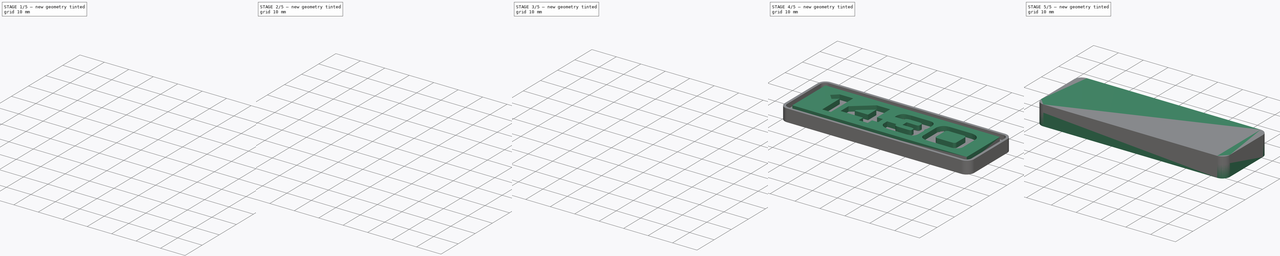
[diagram: build sequence overview — one tinted view per stage of 5, left to right]
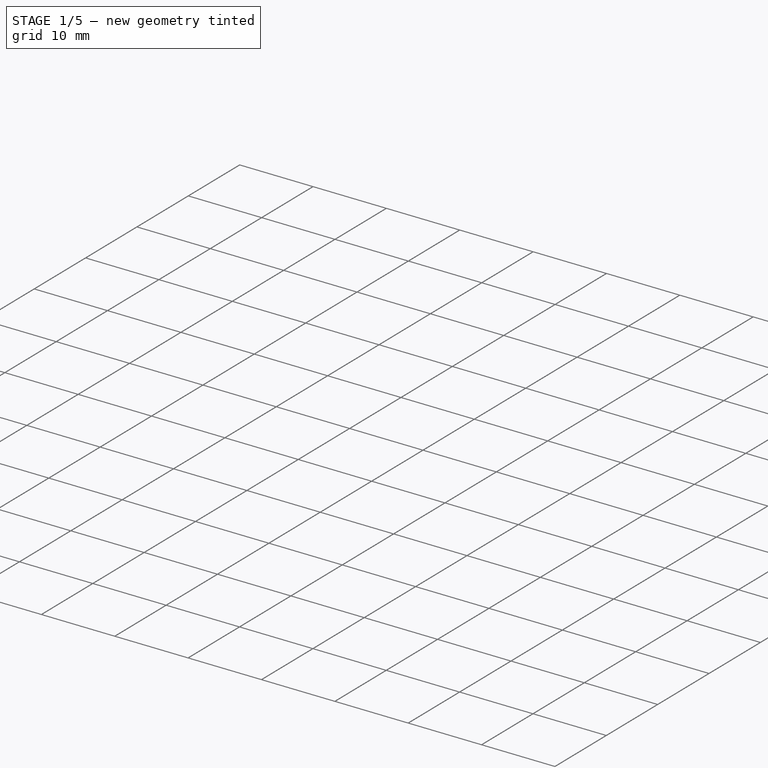
[diagram: stage 1 of 5 — iso view after this stage's code; geometry added in this stage tinted green]
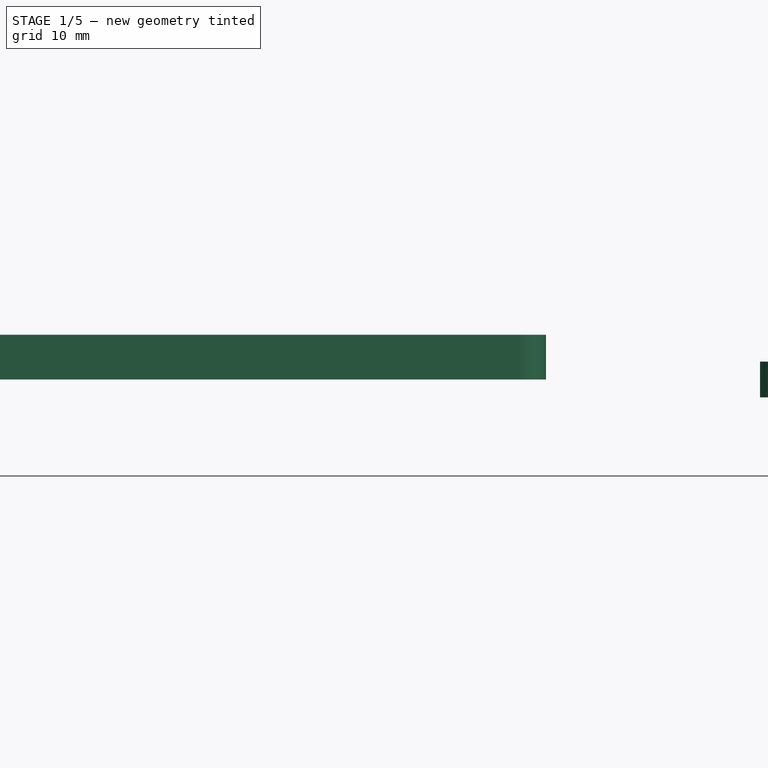
[diagram: stage 1 of 5 — front view after this stage's code; geometry added in this stage tinted green]
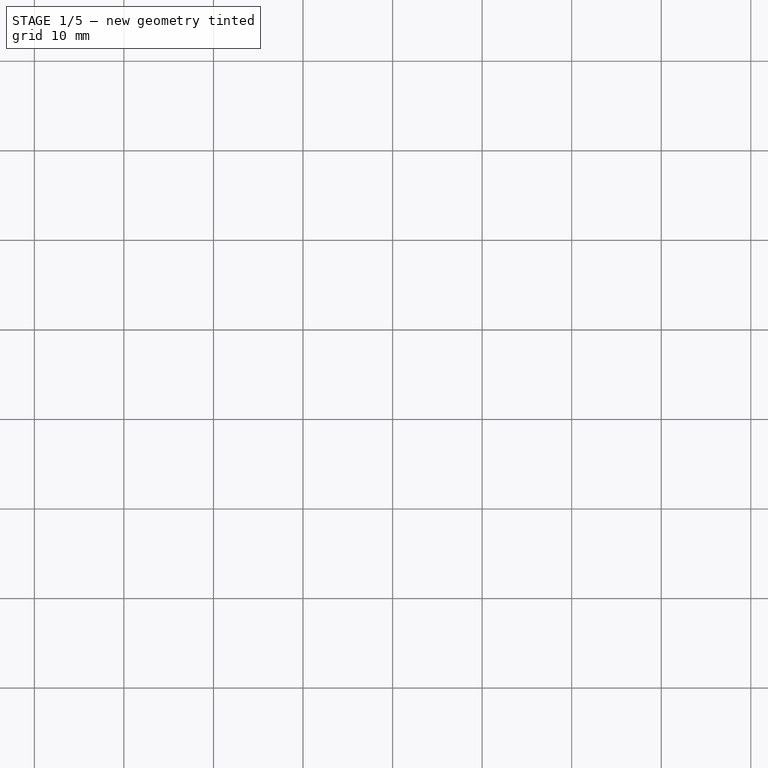
[diagram: stage 1 of 5 — top view after this stage's code; geometry added in this stage tinted green]
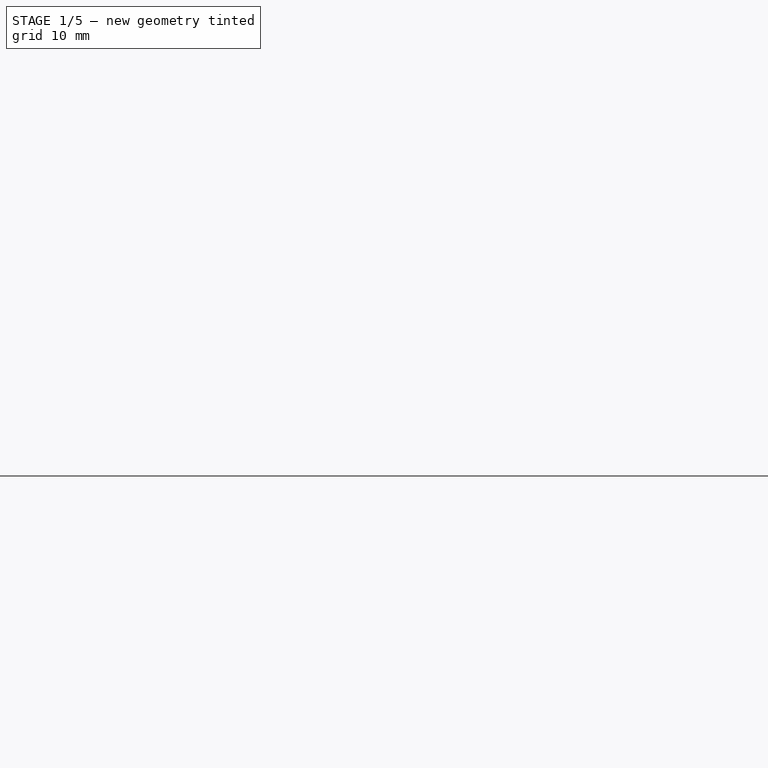
[diagram: stage 1 of 5 — right view after this stage's code; geometry added in this stage tinted green]
FCSTD DOCUMENT  (FreeCAD 0.17R10893 (Git))
Label: freecad-1430.2
License: CreativeCommons Attribution-ShareAlike
LicenseURL: http://creativecommons.org/licenses/by-sa/4.0/
objects: Part::Feature×6, Part::Extrusion×6, Part::Cut×3, Part::MultiFuse×3, Sketcher::SketchObject×3, Path::FeaturePython×3, PartDesign::Pad×2, PartDesign::Body×1, PartDesign::Pocket×1, Path::FeatureCompoundPython×1
note: 28 computed .brp shape members not serialized (recipe doc carries the construction recipe); baked Part::Feature solids carry a one-line shape summary decoded from their .brp

FEATURE [Part::Extrusion] Extrude004
  Base = -> path3458007
  Dir = (0,0,-1)
  DirMode = 0
  FaceMakerClass = Part::FaceMakerExtrusion
  LengthFwd = 0
  LengthRev = 0
  Solid = true
  Symmetric = false
FEATURE [Part::Extrusion] Extrude005
  Base = -> path3458008
  Dir = (0,0,-1)
  DirMode = 0
  FaceMakerClass = Part::FaceMakerExtrusion
  LengthFwd = 0
  LengthRev = 0
  Placement = pos=(0,0,2) rot=(0,0,1;0rad)
  Solid = true
  Symmetric = false
FEATURE [Sketcher::SketchObject] Sketch002
  ExternalGeometry = -> [Pad001]
  MapMode = 5
  Placement = pos=(0,0,3) rot=(0,0,1;0rad)
  sketch-geometry (8):
    g0: LineSegment StartX=-45.8645 StartY=10.6368 StartZ=0 EndX=24.1355 EndY=10.6368 EndZ=0
    g1: LineSegment StartX=26.1355 StartY=8.6368 StartZ=0 EndX=26.1355 EndY=-10.3632 EndZ=0
    g2: LineSegment StartX=24.1355 StartY=-12.3632 StartZ=0 EndX=-45.8645 EndY=-12.3632 EndZ=0
    g3: LineSegment StartX=-47.8645 StartY=-10.3632 StartZ=0 EndX=-47.8645 EndY=8.6368 EndZ=0
    g4: ArcOfCircle CenterX=-45.8645 CenterY=8.6368 CenterZ=0 NormalX=0 NormalY=0 NormalZ=1 Radius=2 StartAngle=1.5708 EndAngle=3.14159
    g5: ArcOfCircle CenterX=-45.8645 CenterY=-10.3632 CenterZ=0 NormalX=0 NormalY=0 NormalZ=1 Radius=2 StartAngle=3.14159 EndAngle=4.71239
    g6: ArcOfCircle CenterX=24.1355 CenterY=-10.3632 CenterZ=0 NormalX=0 NormalY=0 NormalZ=1 Radius=2 StartAngle=4.71239 EndAngle=6.28319
    g7: ArcOfCircle CenterX=24.1355 CenterY=8.6368 CenterZ=0 NormalX=0 NormalY=0 NormalZ=1 Radius=2 StartAngle=0 EndAngle=1.5708
  constraints (20):
    c: Horizontal(g0)
    c: Horizontal(g2)
    c: Vertical(g1)
    c: Vertical(g3)
    c: Tangent(g0,g4) = 1.5708
    c: Tangent(g3,g4) = 1.5708
    c: Tangent(g3,g5) = 1.5708
    c: Tangent(g2,g5) = 1.5708
    c: Tangent(g2,g6) = 1.5708
    c: Tangent(g1,g6) = 1.5708
    c: Tangent(g1,g7) = 1.5708
    c: Tangent(g0,g7) = 1.5708
    c: Radius(g4) = 2
    c: Equal(g4,g5)
    c: Equal(g5,g6)
    c: Equal(g6,g7)
    c: DistanceX(g3,g1) = 74
    c: DistanceY(g2,g0) = 23
    c: DistanceX(g1,g-3) = 1
    c: DistanceY(g0,g-4) = 1
FEATURE [Sketcher::SketchObject] Sketch
  ExternalGeometry = -> [Sketch002]
  MapMode = 5
  sketch-geometry (4):
    g0: LineSegment StartX=-45.8645 StartY=8.6368 StartZ=0 EndX=24.1355 EndY=8.6368 EndZ=0
    g1: LineSegment StartX=24.1355 StartY=8.6368 StartZ=0 EndX=24.1355 EndY=-10.3632 EndZ=0
    g2: LineSegment StartX=24.1355 StartY=-10.3632 StartZ=0 EndX=-45.8645 EndY=-10.3632 EndZ=0
    g3: LineSegment StartX=-45.8645 StartY=-10.3632 StartZ=0 EndX=-45.8645 EndY=8.6368 EndZ=0
  constraints (12):
    c: Coincident(g0,g1)
    c: Coincident(g1,g2)
    c: Coincident(g2,g3)
    c: Coincident(g3,g0)
    c: Horizontal(g0)
    c: Horizontal(g2)
    c: Vertical(g1)
    c: Vertical(g3)
    c: DistanceY(g1,g0) = 19
    c: DistanceX(g2,g1) = 70
    c: DistanceX(g-3,g0) = 2
    c: DistanceY(g0,g-4) = 2
FEATURE [PartDesign::Pocket] Pocket
  Length = 2
  Type = 0
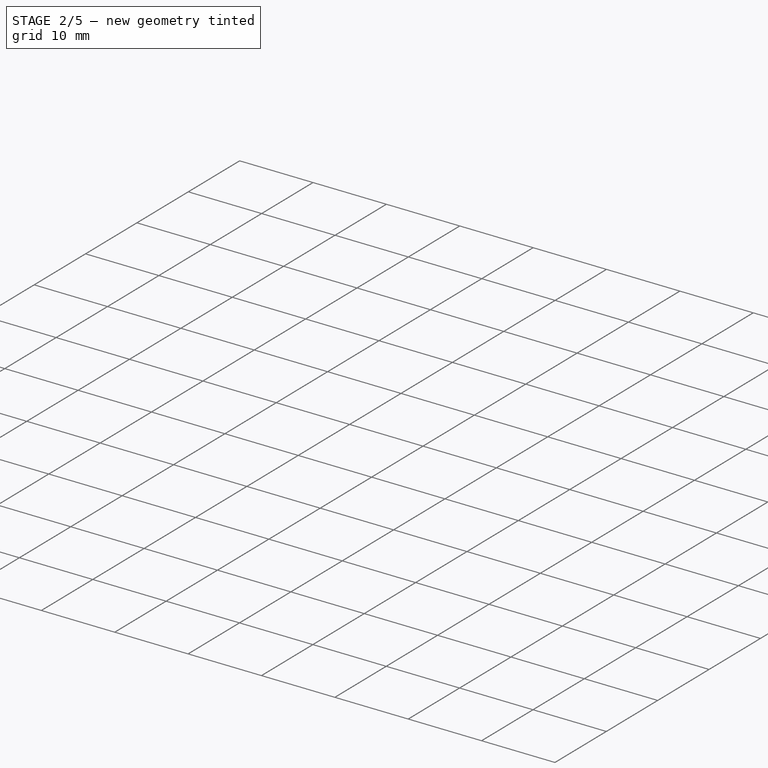
[diagram: stage 2 of 5 — iso view after this stage's code; geometry added in this stage tinted green]
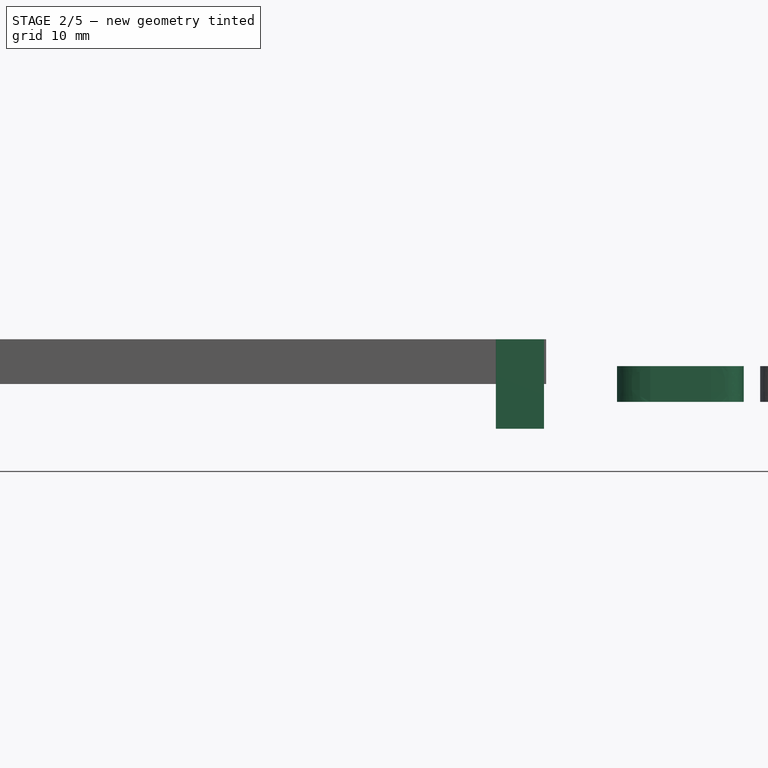
[diagram: stage 2 of 5 — front view after this stage's code; geometry added in this stage tinted green]
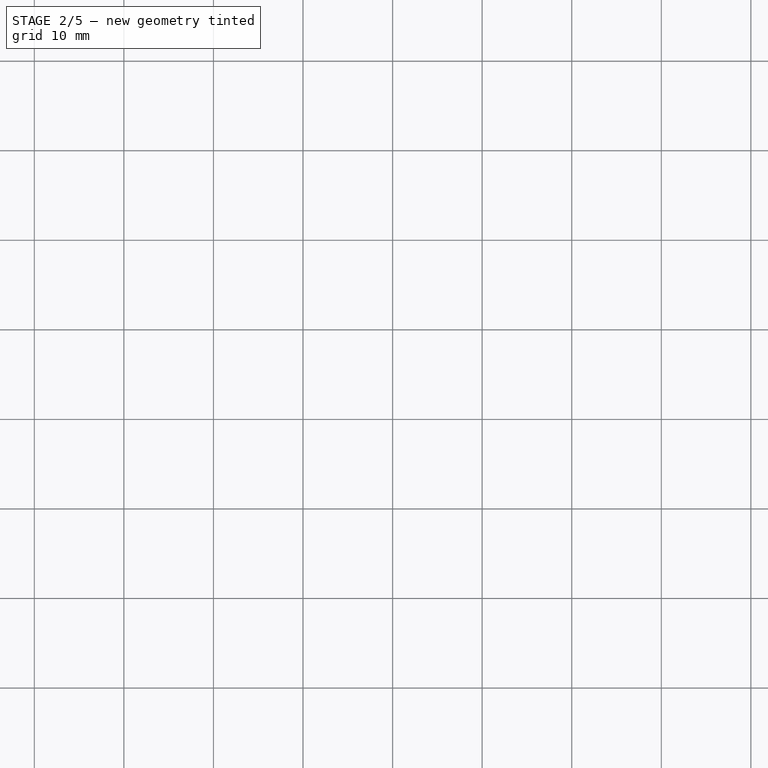
[diagram: stage 2 of 5 — top view after this stage's code; geometry added in this stage tinted green]
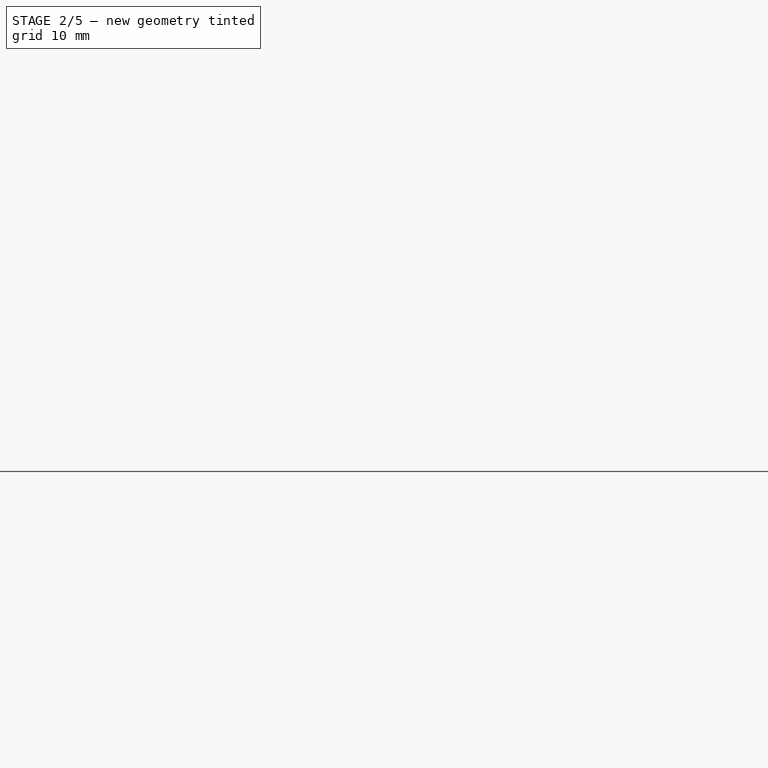
[diagram: stage 2 of 5 — right view after this stage's code; geometry added in this stage tinted green]
FEATURE [Part::Extrusion] Extrude002
  Base = -> path3458005
  Dir = (0,0,1)
  DirMode = 0
  FaceMakerClass = Part::FaceMakerExtrusion
  LengthFwd = 0
  LengthRev = 0
  Placement = pos=(0,0,-4) rot=(0,0,1;0rad)
  Solid = true
  Symmetric = false
FEATURE [Part::Extrusion] Extrude003  label="tres"
  Base = -> path3458006
  Dir = (0,0,-1)
  DirMode = 0
  FaceMakerClass = Part::FaceMakerExtrusion
  LengthFwd = 0
  LengthRev = 0
  Solid = true
  Symmetric = false
FEATURE [Part::Cut] Cut001  label="cero"
  Base = -> Extrude004
  Tool = -> Extrude005
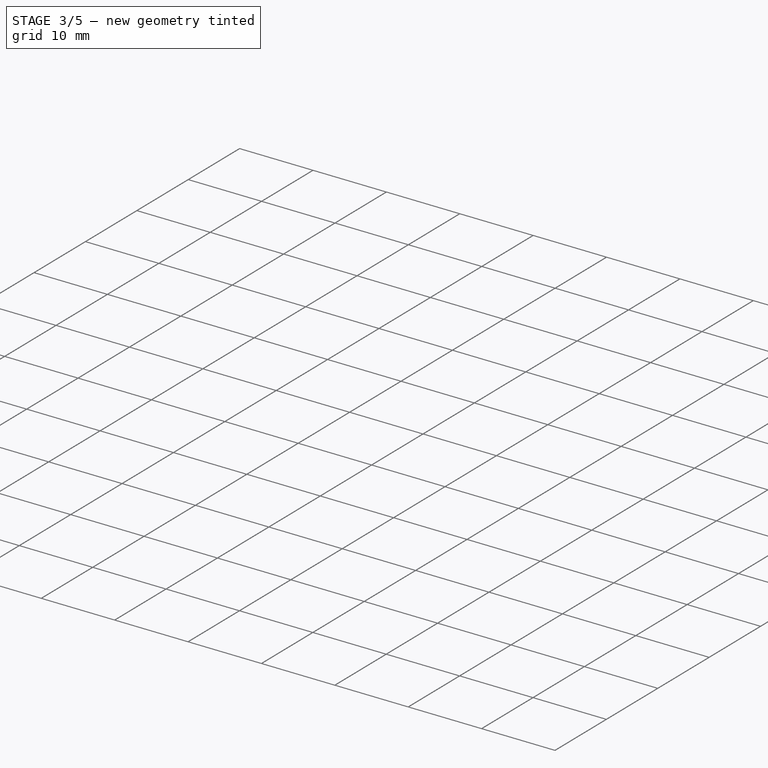
[diagram: stage 3 of 5 — iso view after this stage's code; geometry added in this stage tinted green]
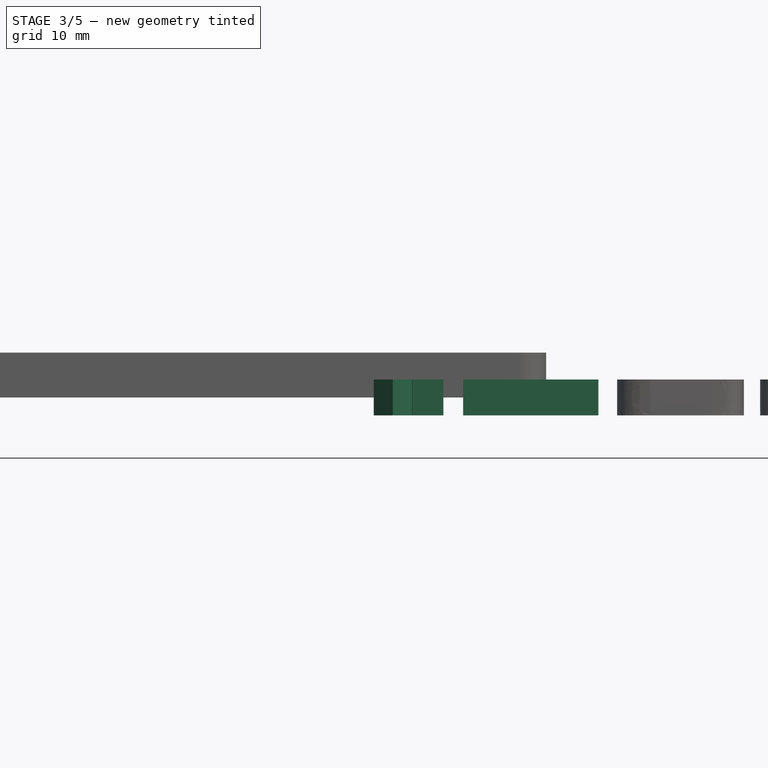
[diagram: stage 3 of 5 — front view after this stage's code; geometry added in this stage tinted green]
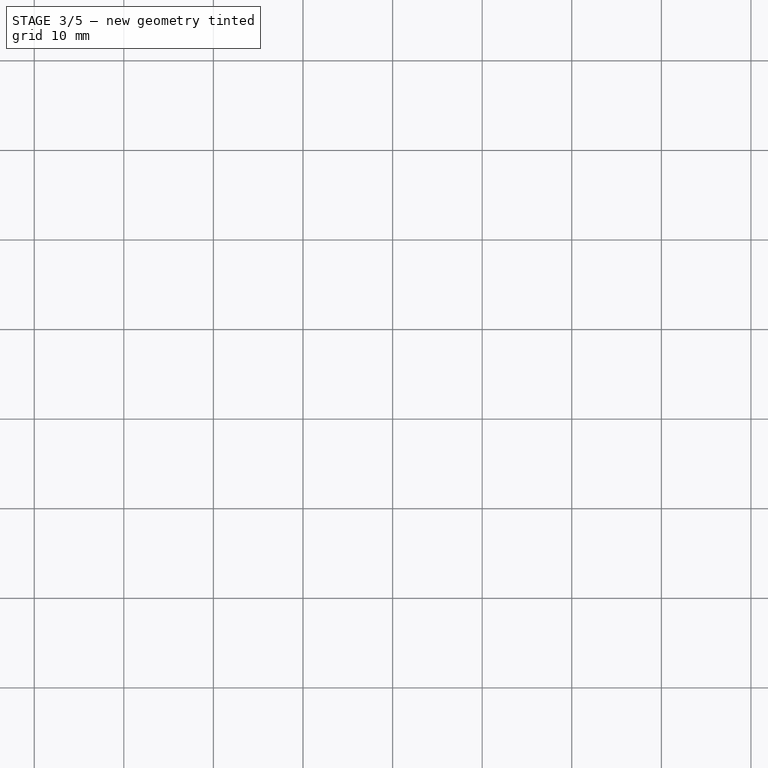
[diagram: stage 3 of 5 — top view after this stage's code; geometry added in this stage tinted green]
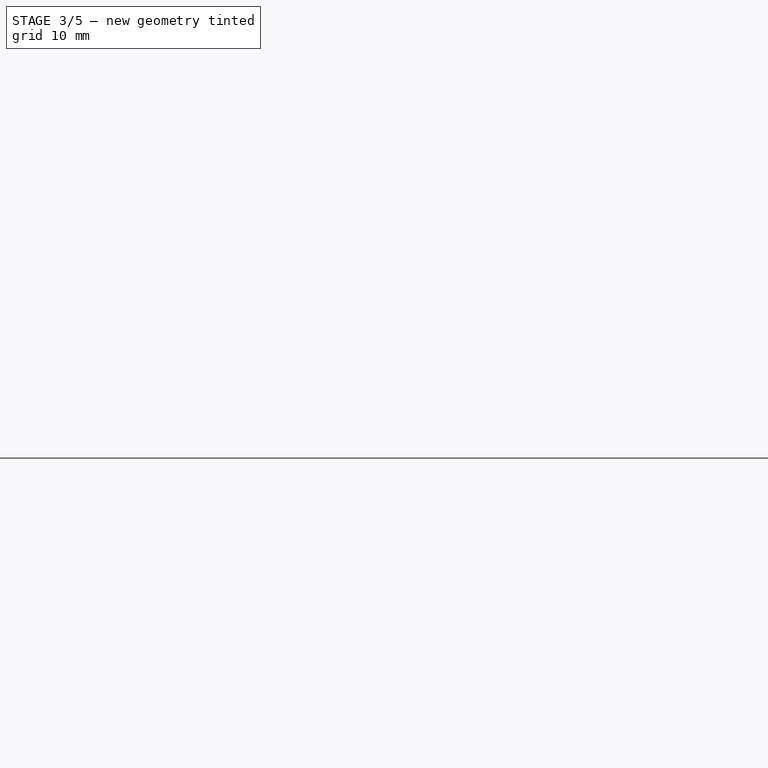
[diagram: stage 3 of 5 — right view after this stage's code; geometry added in this stage tinted green]
FEATURE [Part::Feature] path3458003
  shape: bbox 7.769 x 12.89 x 2e-07 mm, 0 faces, 0 solids (baked)
FEATURE [Part::Feature] path3458004
  shape: bbox 15.1 x 12.89 x 2e-07 mm, 0 faces, 0 solids (baked)
FEATURE [Part::Feature] path3458005
  Placement = pos=(0,0,-3) rot=(0,0,1;0rad)
  shape: bbox 5.369 x 4.775 x 2e-07 mm, 0 faces, 0 solids (baked)
FEATURE [Part::Feature] path3458006
  shape: bbox 14.19 x 13.35 x 2e-07 mm, 0 faces, 0 solids (baked)
FEATURE [Part::Feature] path3458007
  shape: bbox 16.32 x 12.97 x 2e-07 mm, 0 faces, 0 solids (baked)
FEATURE [Part::Feature] path3458008
  shape: bbox 8.127 x 6.696 x 2e-07 mm, 0 faces, 0 solids (baked)
FEATURE [Part::Extrusion] Extrude  label="uno"
  Base = -> path3458003
  Dir = (0,0,-1)
  DirMode = 0
  FaceMakerClass = Part::FaceMakerExtrusion
  LengthFwd = 0
  LengthRev = 0
  Solid = true
  Symmetric = false
FEATURE [Part::Extrusion] Extrude001
  Base = -> path3458004
  Dir = (0,0,-1)
  DirMode = 0
  FaceMakerClass = Part::FaceMakerExtrusion
  LengthFwd = 0
  LengthRev = 0
  Solid = true
  Symmetric = false
FEATURE [Part::Cut] Cut  label="cuatro"
  Base = -> Extrude001
  Tool = -> Extrude002
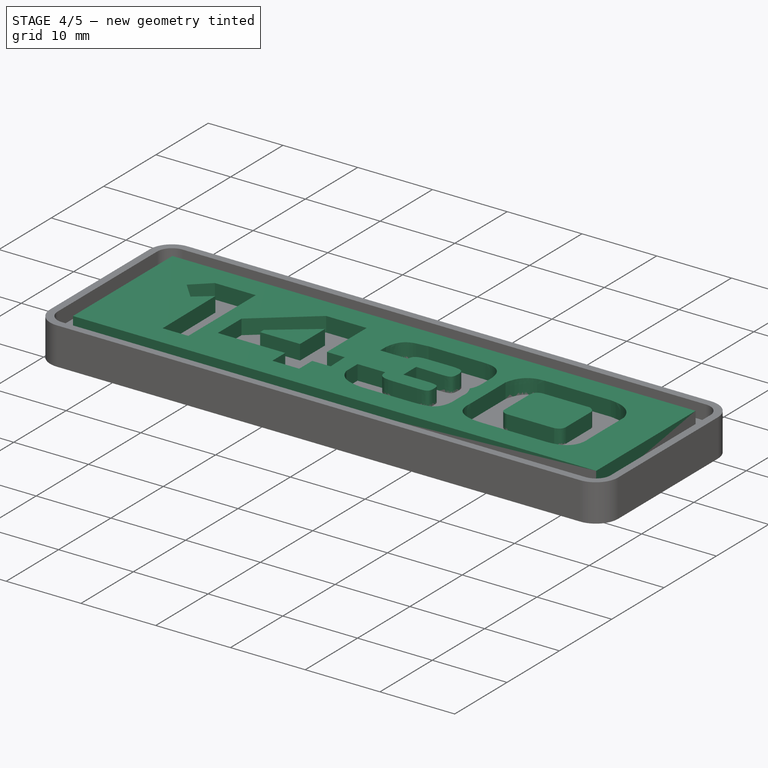
[diagram: stage 4 of 5 — iso view after this stage's code; geometry added in this stage tinted green]
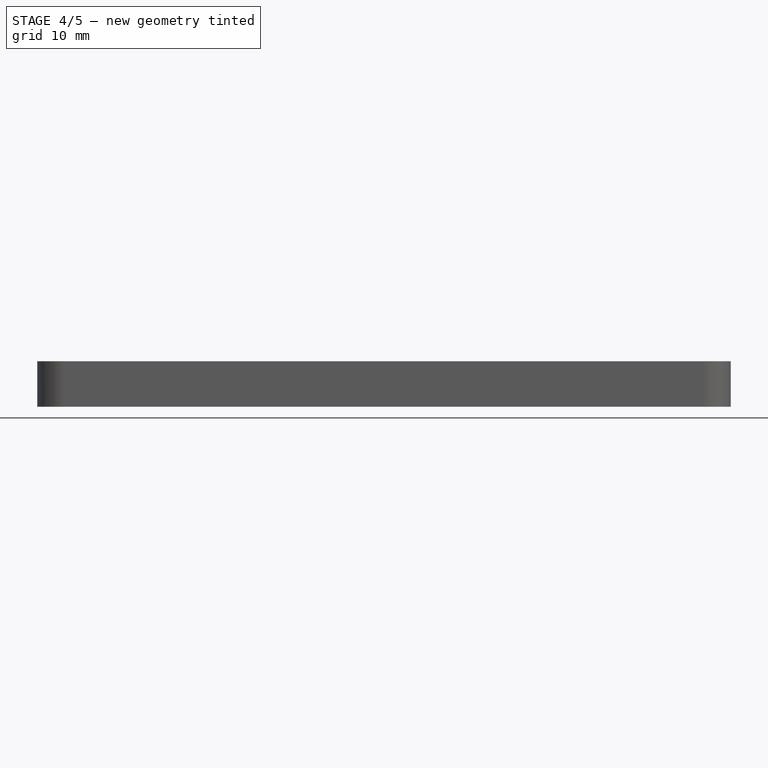
[diagram: stage 4 of 5 — front view after this stage's code; geometry added in this stage tinted green]
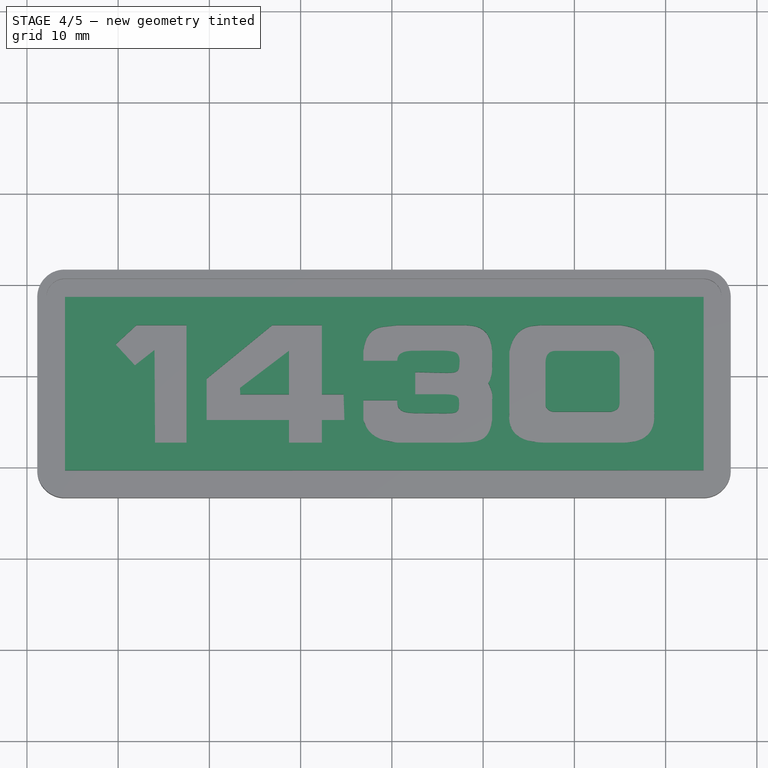
[diagram: stage 4 of 5 — top view after this stage's code; geometry added in this stage tinted green]
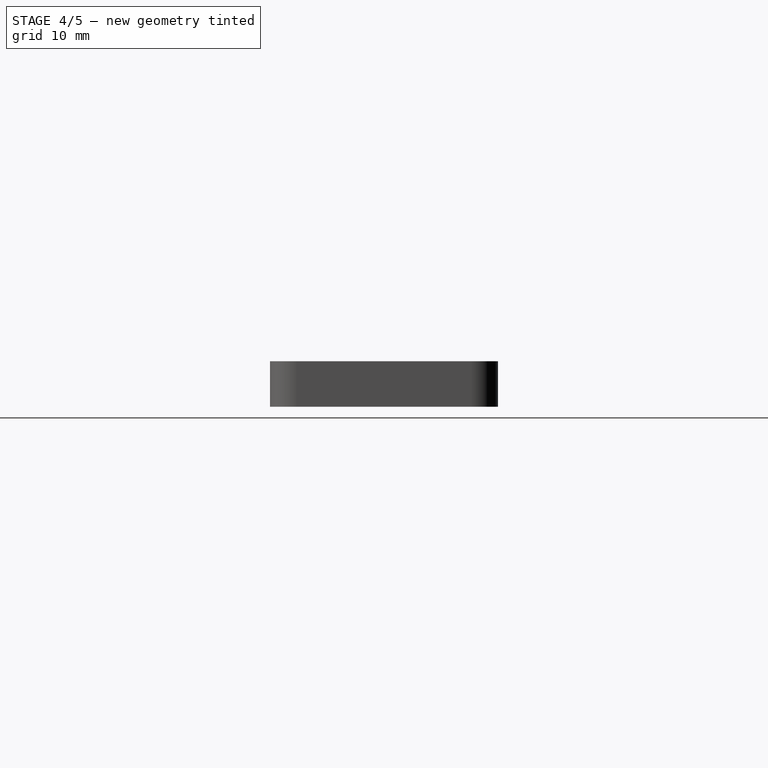
[diagram: stage 4 of 5 — right view after this stage's code; geometry added in this stage tinted green]
FEATURE [PartDesign::Body] Body
FEATURE [PartDesign::Pad] Pad
  Length = 3
  Length2 = 100
  Type = 0
FEATURE [Part::MultiFuse] Fusion  label="catorcetreinta"
  Placement = pos=(-48.5,276.5,5) rot=(0,0,1;0rad)
  Shapes = -> [Extrude,Cut001,Cut,Extrude003]
FEATURE [Part::Cut] Cut002  label="placa1430"
  Base = -> Pad
  Placement = pos=(0.32,0.23,0) rot=(0,0,1;0rad)
  Tool = -> Fusion
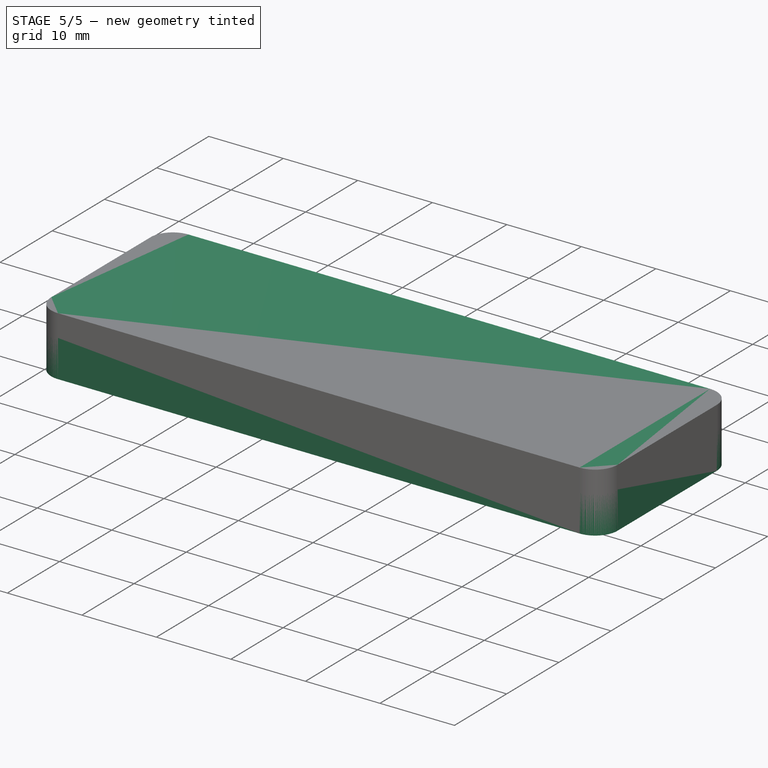
[diagram: stage 5 of 5 — iso view after this stage's code; geometry added in this stage tinted green]
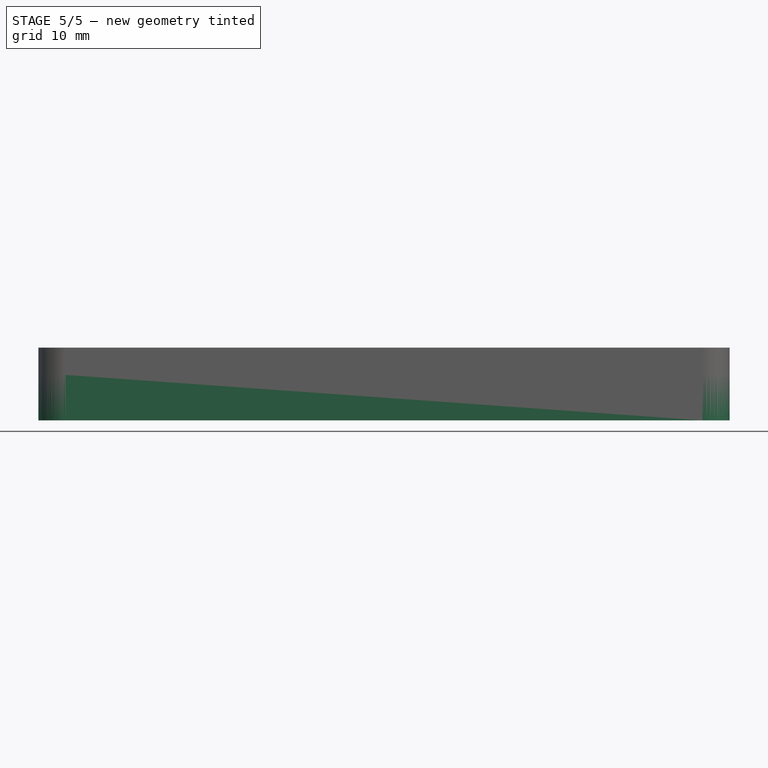
[diagram: stage 5 of 5 — front view after this stage's code; geometry added in this stage tinted green]
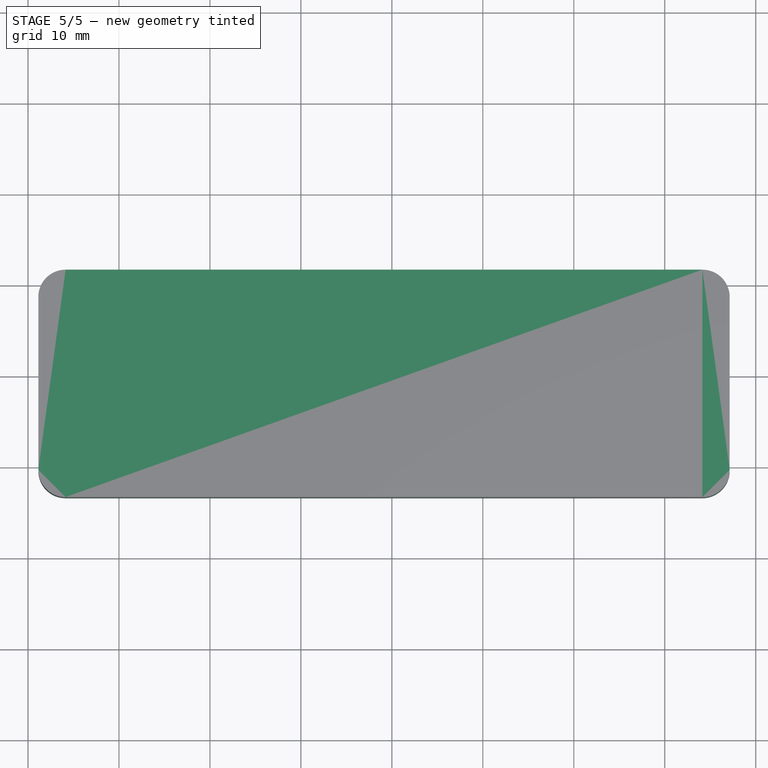
[diagram: stage 5 of 5 — top view after this stage's code; geometry added in this stage tinted green]
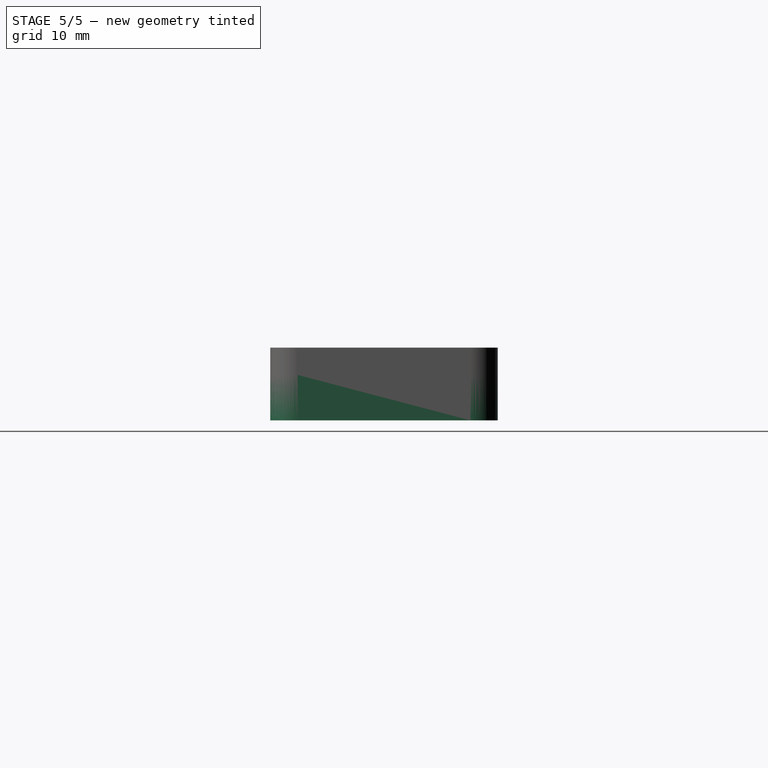
[diagram: stage 5 of 5 — right view after this stage's code; geometry added in this stage tinted green]
FEATURE [Sketcher::SketchObject] Sketch001
  MapMode = 5
  Placement = pos=(0,0,3) rot=(0,0,1;0rad)
  sketch-geometry (8):
    g0: LineSegment StartX=-45.8645 StartY=11.6368 StartZ=0 EndX=24.1355 EndY=11.6368 EndZ=0
    g1: LineSegment StartX=27.1355 StartY=8.6368 StartZ=0 EndX=27.1355 EndY=-10.3632 EndZ=0
    g2: LineSegment StartX=24.1355 StartY=-13.3632 StartZ=0 EndX=-45.8645 EndY=-13.3632 EndZ=0
    g3: LineSegment StartX=-48.8645 StartY=-10.3632 StartZ=0 EndX=-48.8645 EndY=8.6368 EndZ=0
    g4: ArcOfCircle CenterX=-45.8645 CenterY=8.6368 CenterZ=0 NormalX=0 NormalY=0 NormalZ=1 Radius=3 StartAngle=1.5708 EndAngle=3.14159
    g5: ArcOfCircle CenterX=-45.8645 CenterY=-10.3632 CenterZ=0 NormalX=0 NormalY=0 NormalZ=1 Radius=3 StartAngle=3.14159 EndAngle=4.71239
    g6: ArcOfCircle CenterX=24.1355 CenterY=-10.3632 CenterZ=0 NormalX=0 NormalY=0 NormalZ=1 Radius=3 StartAngle=4.71239 EndAngle=6.28319
    g7: ArcOfCircle CenterX=24.1355 CenterY=8.6368 CenterZ=0 NormalX=0 NormalY=0 NormalZ=1 Radius=3 StartAngle=0 EndAngle=1.5708
  constraints (18):
    c: Horizontal(g0)
    c: Horizontal(g2)
    c: Vertical(g1)
    c: Vertical(g3)
    c: Tangent(g0,g4) = 1.5708
    c: Tangent(g3,g4) = 1.5708
    c: Tangent(g3,g5) = 1.5708
    c: Tangent(g2,g5) = 1.5708
    c: Tangent(g2,g6) = 1.5708
    c: Tangent(g1,g6) = 1.5708
    c: Tangent(g1,g7) = 1.5708
    c: Tangent(g0,g7) = 1.5708
    c: Radius(g4) = 3
    c: Equal(g4,g5)
    c: Equal(g5,g6)
    c: Equal(g6,g7)
    c: DistanceY(g2,g0) = 25
    c: DistanceX(g3,g1) = 76
FEATURE [PartDesign::Pad] Pad001
  Length = 5
  Length2 = 100
  Reversed = true
  Type = 0
FEATURE [Part::MultiFuse] Fusion001  label="placa1431"
  Shapes = -> [Pocket,Cut002]
FEATURE [Part::MultiFuse] Fusion002
  Placement = pos=(0,0,-3) rot=(0,0,1;0rad)
  Shapes = -> [Body,Fusion001]
FEATURE [Path::FeaturePython] Default_Tool  # Path/CAM operation (typed FeaturePython)
  HorizFeed = 200
  HorizRapid = 200
  SpindleDir = 0
  SpindleSpeed = 0
  ToolNumber = 1
  VertFeed = 200
  VertRapid = 200
FEATURE [Path::FeaturePython] Pocket001  # Path/CAM operation (typed FeaturePython)
  Active = true
  Algorithm = 1
  Base = -> [Fusion002]
  ClearanceHeight = 5
  CutMode = 0
  FinalDepth = -2
  FinishDepth = 0
  HelixSize = 0.75
  KeepToolDown = false
  MaterialAllowance = 0
  RampAngle = 3
  RampSize = 0.75
  SafeHeight = 3
  StartAt = 0
  StartDepth = 0
  StartPoint = (0,0,0)
  StepDown = 1
  StepOver = 50
  ToolController = -> Default_Tool
  UseEntry = false
  UseStartPoint = false
  UseZigZag = false
  ZigUnidirectional = false
  ZigZagAngle = 45
FEATURE [Path::FeaturePython] Contour  # Path/CAM operation (typed FeaturePython)
  Active = true
  ClearanceHeight = 5
  Direction = 0
  EndPoint = (0,0,0)
  ExtendAtEnd = 0
  ExtendAtStart = 0
  FinalDepth = -5
  LeadInLineLen = 0
  LeadOutLineLen = 0
  OffsetExtra = 0
  RollRadius = 0
  SafeHeight = 3
  Side = 0
  StartDepth = 0
  StartPoint = (0,0,0)
  StepDown = 1
  ToolController = -> Default_Tool
  UseComp = true
  UseEndPoint = false
  UseStartPoint = false
FEATURE [Path::FeatureCompoundPython] Job  # Path/CAM operation (typed FeaturePython)
  Base = -> Fusion002
  GeometryTolerance = 0.01
  Group = -> [Default_Tool,Pocket001,Contour]
  MachineName = BigMill
  MachineUnits = 0
  PostProcessor = 0
  UsePlacements = false
  X_Max = 609.6
  X_Min = -609.6
  Y_Max = 152.4
  Y_Min = -152.4
  Z_Max = 304.8
  Z_Min = 0
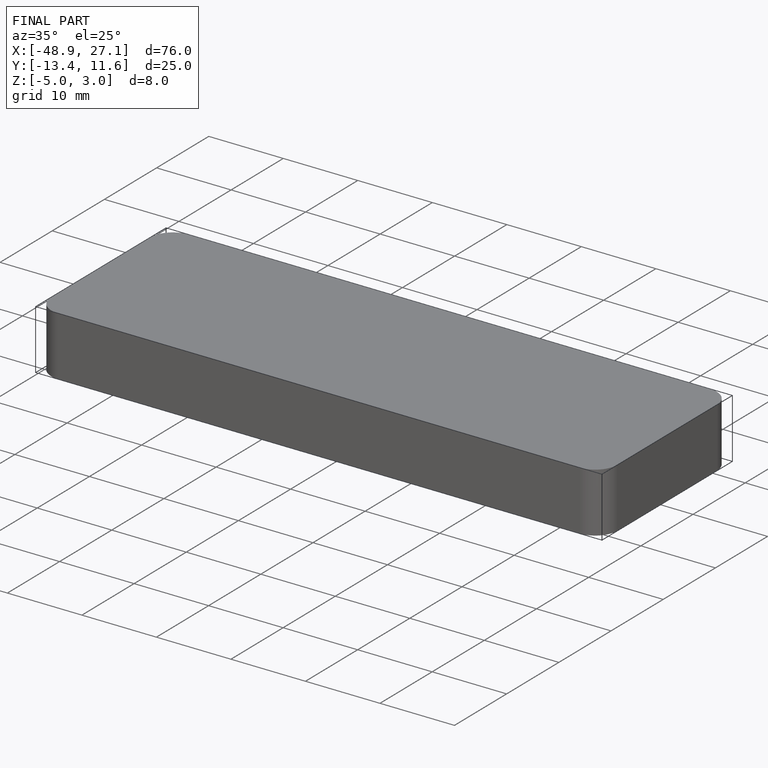
[diagram: finished part — iso view with bounding-box wireframe]
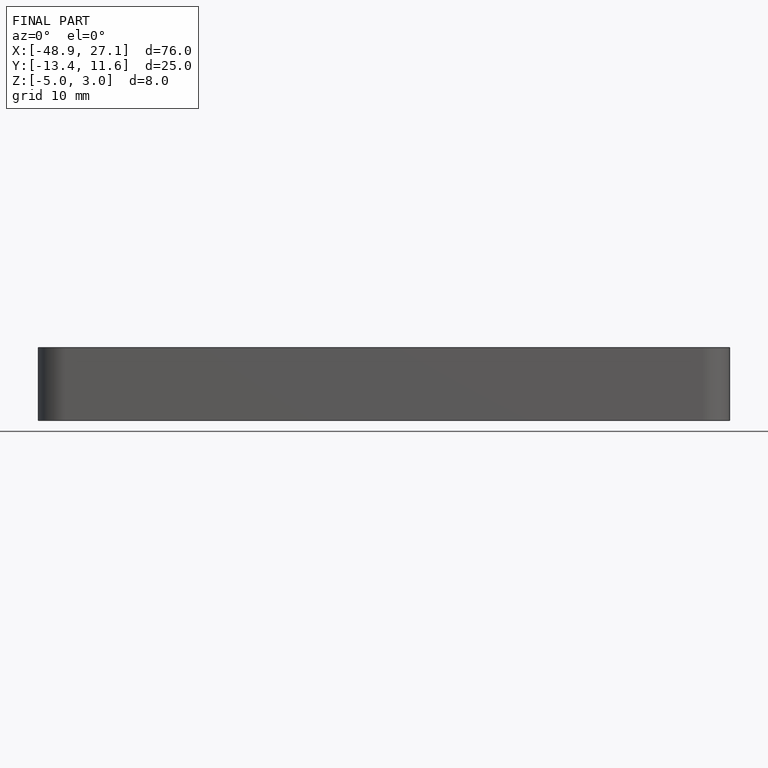
[diagram: finished part — front view with bounding-box wireframe]
